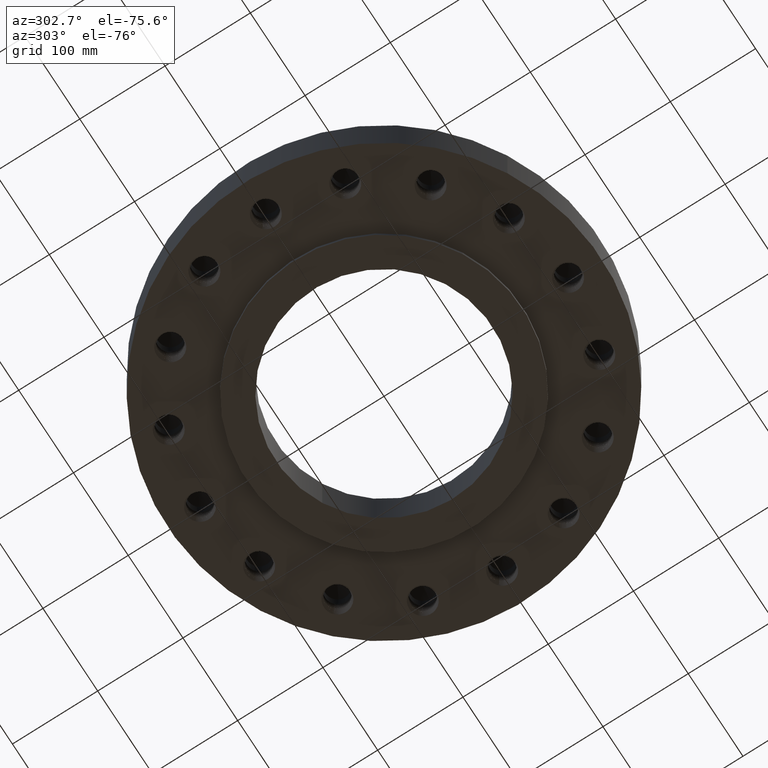
[diagram: clean part render]
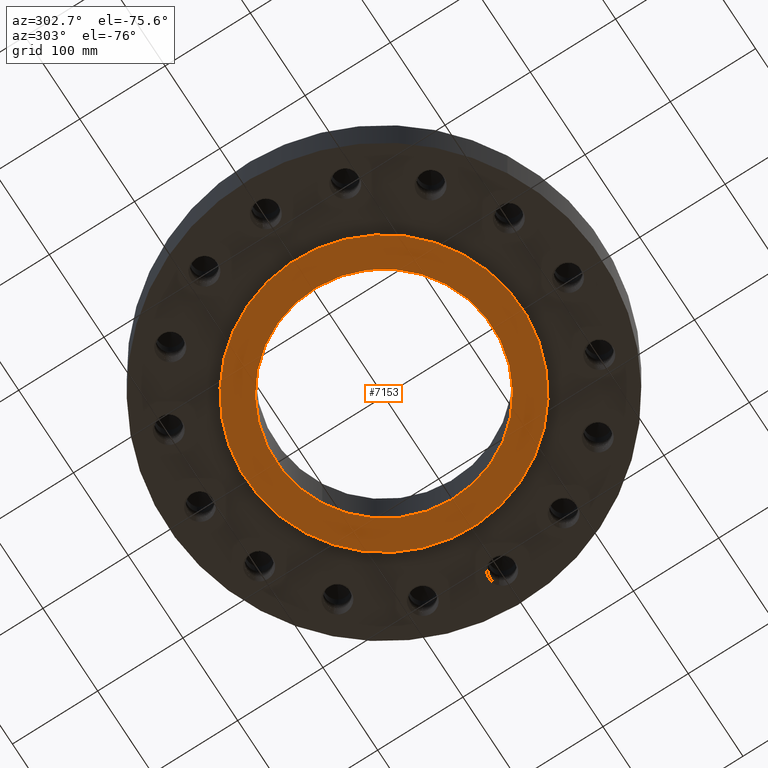
[diagram: same view with one face highlighted and labeled with its STEP entity id]
A machine part, auxiliary view. The second image highlights one B-rep face of the part: STEP entity #7153.
In plain terms, the highlighted planar face has unit normal (0, 0, -1).
Its self-contained STEP definition (entity closure, byte-faithful):
#5110=AXIS2_PLACEMENT_3D('Circle Axis2P3D',#5108,#5109,$) ;
#5136=AXIS2_PLACEMENT_3D('Circle Axis2P3D',#5134,#5135,$) ;
#7129=AXIS2_PLACEMENT_3D('Plane Axis2P3D',#7126,#7127,#7128) ;
#7137=AXIS2_PLACEMENT_3D('Circle Axis2P3D',#7135,#7136,$) ;
#7146=AXIS2_PLACEMENT_3D('Circle Axis2P3D',#7144,#7145,$) ;
#5108=CARTESIAN_POINT('Axis2P3D Location',(0.,0.,-0.250000000001)) ;
#5112=CARTESIAN_POINT('Vertex',(3.05633780861,5.59458883207,-0.250000000001)) ;
#5114=CARTESIAN_POINT('Vertex',(-3.05633780861,-5.59458883207,-0.250000000001)) ;
#5134=CARTESIAN_POINT('Axis2P3D Location',(0.,0.,-0.250000000001)) ;
#7126=CARTESIAN_POINT('Axis2P3D Location',(0.,6.37500000003,-0.250000000001)) ;
#7135=CARTESIAN_POINT('Axis2P3D Location',(0.,0.,-0.250000000001)) ;
#7139=CARTESIAN_POINT('Vertex',(2.39712769303,4.38791280947,-0.250000000001)) ;
#7141=CARTESIAN_POINT('Vertex',(-2.39712769303,-4.38791280947,-0.250000000001)) ;
#7144=CARTESIAN_POINT('Axis2P3D Location',(0.,0.,-0.250000000001)) ;
#5109=DIRECTION('Axis2P3D Direction',(0.,0.,-0.0393700787402)) ;
#5135=DIRECTION('Axis2P3D Direction',(0.,0.,-0.0393700787402)) ;
#7127=DIRECTION('Axis2P3D Direction',(0.,0.,-0.0393700787402)) ;
#7128=DIRECTION('Axis2P3D XDirection',(0.0393700787402,0.,0.)) ;
#7136=DIRECTION('Axis2P3D Direction',(0.,0.,-0.0393700787402)) ;
#7145=DIRECTION('Axis2P3D Direction',(0.,0.,-0.0393700787402)) ;
#7132=ORIENTED_EDGE('',*,*,#5138,.T.) ;
#7133=ORIENTED_EDGE('',*,*,#5116,.T.) ;
#7150=ORIENTED_EDGE('',*,*,#7143,.F.) ;
#7151=ORIENTED_EDGE('',*,*,#7148,.F.) ;
#7152=FACE_BOUND('',#7149,.T.) ;
#7153=ADVANCED_FACE('PartBody',(#7134,#7152),#7130,.T.) ;
#5111=CIRCLE('generated circle',#5110,6.37500000003) ;
#5137=CIRCLE('generated circle',#5136,6.37500000003) ;
#7138=CIRCLE('generated circle',#7137,5.00000000002) ;
#7147=CIRCLE('generated circle',#7146,5.00000000002) ;
#5116=EDGE_CURVE('',#5113,#5115,#5111,.T.) ;
#5138=EDGE_CURVE('',#5115,#5113,#5137,.T.) ;
#7143=EDGE_CURVE('',#7140,#7142,#7138,.T.) ;
#7148=EDGE_CURVE('',#7142,#7140,#7147,.T.) ;
#7131=EDGE_LOOP('',(#7132,#7133)) ;
#7149=EDGE_LOOP('',(#7150,#7151)) ;
#7134=FACE_OUTER_BOUND('',#7131,.T.) ;
#7130=PLANE('',#7129) ;
#5113=VERTEX_POINT('',#5112) ;
#5115=VERTEX_POINT('',#5114) ;
#7140=VERTEX_POINT('',#7139) ;
#7142=VERTEX_POINT('',#7141) ;